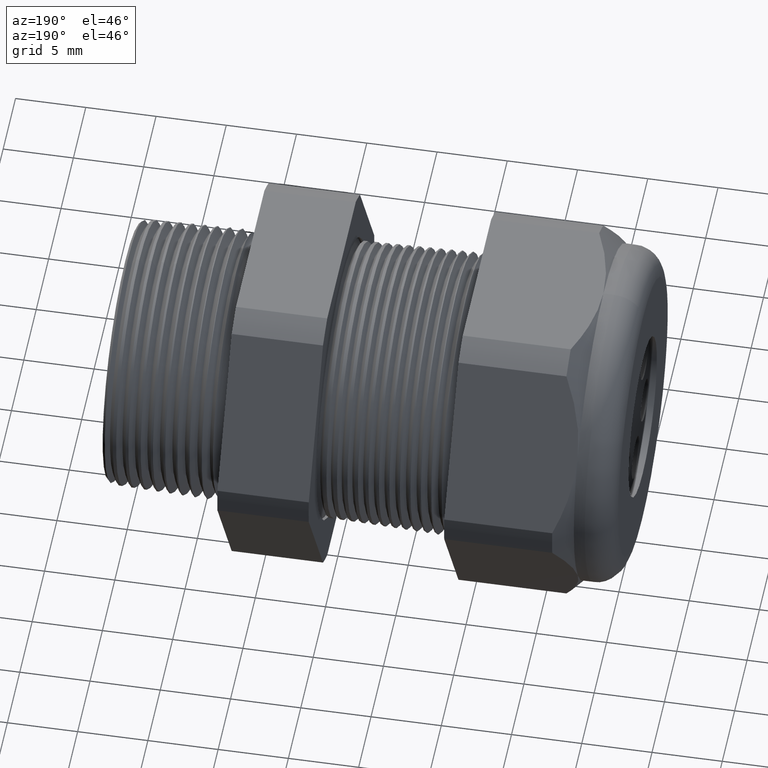
[diagram: clean part render]
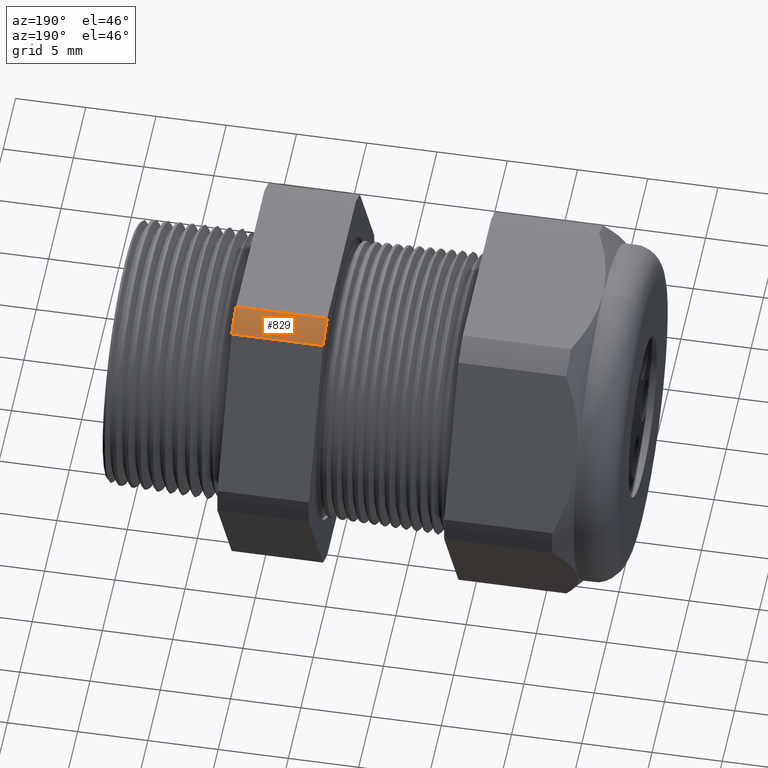
[diagram: same view with one face highlighted and labeled with its STEP entity id]
A machine part, auxiliary view. The second image highlights one B-rep face of the part: STEP entity #829.
In plain terms, the highlighted cylindrical surface (partial cylindrical patch) has radius 13.2512 mm, axis along (-1, 0, 0).
Its self-contained STEP definition (entity closure, byte-faithful):
#665 = VERTEX_POINT ( 'NONE', #3204 ) ;
#667 = EDGE_CURVE ( 'NONE', #665, #668, #3203, .T. ) ;
#668 = VERTEX_POINT ( 'NONE', #3198 ) ;
#825 = EDGE_CURVE ( 'NONE', #668, #826, #3439, .T. ) ;
#826 = VERTEX_POINT ( 'NONE', #3496 ) ;
#829 = ADVANCED_FACE ( 'NONE', ( #3491 ), #3490, .T. ) ;
#830 = EDGE_LOOP ( 'NONE', ( #831, #832, #833, #889 ) ) ;
#831 = ORIENTED_EDGE ( 'NONE', *, *, #825, .F. ) ;
#832 = ORIENTED_EDGE ( 'NONE', *, *, #667, .F. ) ;
#833 = ORIENTED_EDGE ( 'NONE', *, *, #834, .T. ) ;
#834 = EDGE_CURVE ( 'NONE', #665, #835, #3489, .T. ) ;
#835 = VERTEX_POINT ( 'NONE', #3481 ) ;
#889 = ORIENTED_EDGE ( 'NONE', *, *, #890, .F. ) ;
#890 = EDGE_CURVE ( 'NONE', #826, #835, #3590, .T. ) ;
#3198 = CARTESIAN_POINT ( 'NONE',  ( -0.3100000000000000000, 0.2264307620443832800, 0.4699999999999999200 ) ) ;
#3199 = DIRECTION ( 'NONE',  ( 0.0000000000000000000, 0.0000000000000000000, -1.000000000000000000 ) ) ;
#3200 = DIRECTION ( 'NONE',  ( 1.000000000000000000, 0.0000000000000000000, 0.0000000000000000000 ) ) ;
#3201 = CARTESIAN_POINT ( 'NONE',  ( -0.3100000000000000000, 0.0000000000000000000, 0.0000000000000000000 ) ) ;
#3202 = AXIS2_PLACEMENT_3D ( 'NONE', #3201, #3200, #3199 ) ;
#3203 = CIRCLE ( 'NONE', #3202, 0.5217000000000000500 ) ;
#3204 = CARTESIAN_POINT ( 'NONE',  ( -0.3100000000000000000, 0.2938165587564948700, 0.4310947921287048800 ) ) ;
#3439 = LINE ( 'NONE', #3499, #3498 ) ;
#3481 = CARTESIAN_POINT ( 'NONE',  ( -0.5659055118110235500, 0.2938165587564948700, 0.4310947921287048800 ) ) ;
#3482 = DIRECTION ( 'NONE',  ( -1.000000000000000000, 0.0000000000000000000, 0.0000000000000000000 ) ) ;
#3483 = VECTOR ( 'NONE', #3482, 39.37007874015748100 ) ;
#3484 = CARTESIAN_POINT ( 'NONE',  ( 0.04000000000000011900, 0.2938165587564948700, 0.4310947921287048800 ) ) ;
#3485 = DIRECTION ( 'NONE',  ( 0.0000000000000000000, 0.0000000000000000000, 1.000000000000000000 ) ) ;
#3486 = DIRECTION ( 'NONE',  ( -1.000000000000000000, 0.0000000000000000000, 0.0000000000000000000 ) ) ;
#3487 = CARTESIAN_POINT ( 'NONE',  ( 0.04000000000000011900, 0.0000000000000000000, 0.0000000000000000000 ) ) ;
#3488 = AXIS2_PLACEMENT_3D ( 'NONE', #3487, #3486, #3485 ) ;
#3489 = LINE ( 'NONE', #3484, #3483 ) ;
#3490 = CYLINDRICAL_SURFACE ( 'NONE', #3488, 0.5217000000000000500 ) ;
#3491 = FACE_OUTER_BOUND ( 'NONE', #830, .T. ) ;
#3496 = CARTESIAN_POINT ( 'NONE',  ( -0.5659055118110235500, 0.2264307620443832800, 0.4699999999999999200 ) ) ;
#3497 = DIRECTION ( 'NONE',  ( -1.000000000000000000, 0.0000000000000000000, 0.0000000000000000000 ) ) ;
#3498 = VECTOR ( 'NONE', #3497, 39.37007874015748100 ) ;
#3499 = CARTESIAN_POINT ( 'NONE',  ( 0.04000000000000011900, 0.2264307620443832800, 0.4699999999999999200 ) ) ;
#3586 = DIRECTION ( 'NONE',  ( 0.0000000000000000000, 0.0000000000000000000, 1.000000000000000000 ) ) ;
#3587 = DIRECTION ( 'NONE',  ( -1.000000000000000000, 0.0000000000000000000, 0.0000000000000000000 ) ) ;
#3588 = CARTESIAN_POINT ( 'NONE',  ( -0.5659055118110235500, 0.0000000000000000000, 0.0000000000000000000 ) ) ;
#3589 = AXIS2_PLACEMENT_3D ( 'NONE', #3588, #3587, #3586 ) ;
#3590 = CIRCLE ( 'NONE', #3589, 0.5217000000000000500 ) ;